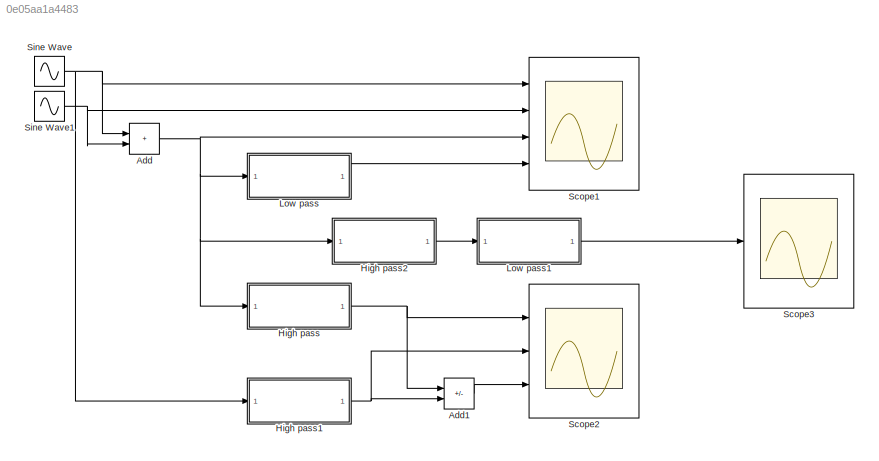
MODEL slx_0e05aa1a4483
KIND model
CONFIG AbsTol = auto
CONFIG EnableMultiTasking = off
CONFIG FixedStep = 1/100
CONFIG MaxStep = auto
CONFIG MinStep = auto
CONFIG RelTol = 1e-3
CONFIG SampleTimeConstraint = Unconstrained
CONFIG SolverName = FixedStepAuto
CONFIG StartTime = 0.0
CONFIG StopTime = 10.0
BLOCK [Sum] Add
  IconShape = rectangular
  Ports = [2, 1]
BLOCK [Sum] Add1
  IconShape = rectangular
  Inputs = +-
  Ports = [2, 1]
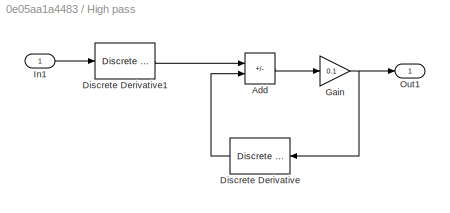
BLOCK [SubSystem] High pass
  Ports = [1, 1]
  RequestExecContextInheritance = off
BLOCK [Sum] High pass/Add
  IconShape = rectangular
  Inputs = +-
  Ports = [2, 1]
BLOCK [Reference] High pass/Discrete Derivative  REF=simulink/Discrete/Discrete Derivative
  Ports = [1, 1]
  SourceBlock = simulink/Discrete/Discrete Derivative
  SourceProductBaseCode = SL
  SourceType = Discrete Derivative
BLOCK [Reference] High pass/Discrete Derivative1  REF=simulink/Discrete/Discrete Derivative
  Ports = [1, 1]
  SourceBlock = simulink/Discrete/Discrete Derivative
  SourceProductBaseCode = SL
  SourceType = Discrete Derivative
BLOCK [Gain] High pass/Gain
  Gain = 0.1
BLOCK [Inport] High pass/In1
BLOCK [Outport] High pass/Out1
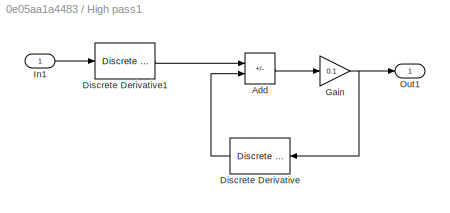
BLOCK [SubSystem] High pass1
  Ports = [1, 1]
  RequestExecContextInheritance = off
BLOCK [Sum] High pass1/Add
  IconShape = rectangular
  Inputs = +-
  Ports = [2, 1]
BLOCK [Reference] High pass1/Discrete Derivative  REF=simulink/Discrete/Discrete Derivative
  Ports = [1, 1]
  SourceBlock = simulink/Discrete/Discrete Derivative
  SourceProductBaseCode = SL
  SourceType = Discrete Derivative
BLOCK [Reference] High pass1/Discrete Derivative1  REF=simulink/Discrete/Discrete Derivative
  Ports = [1, 1]
  SourceBlock = simulink/Discrete/Discrete Derivative
  SourceProductBaseCode = SL
  SourceType = Discrete Derivative
BLOCK [Gain] High pass1/Gain
  Gain = 0.1
BLOCK [Inport] High pass1/In1
BLOCK [Outport] High pass1/Out1
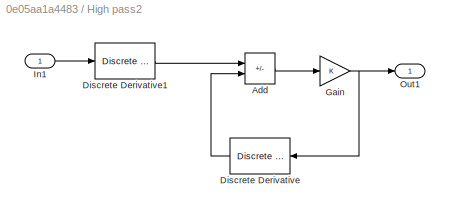
BLOCK [SubSystem] High pass2
  Ports = [1, 1]
  RequestExecContextInheritance = off
BLOCK [Sum] High pass2/Add
  IconShape = rectangular
  Inputs = +-
  Ports = [2, 1]
BLOCK [Reference] High pass2/Discrete Derivative  REF=simulink/Discrete/Discrete Derivative
  Ports = [1, 1]
  SourceBlock = simulink/Discrete/Discrete Derivative
  SourceProductBaseCode = SL
  SourceType = Discrete Derivative
BLOCK [Reference] High pass2/Discrete Derivative1  REF=simulink/Discrete/Discrete Derivative
  Ports = [1, 1]
  SourceBlock = simulink/Discrete/Discrete Derivative
  SourceProductBaseCode = SL
  SourceType = Discrete Derivative
BLOCK [Gain] High pass2/Gain
BLOCK [Inport] High pass2/In1
BLOCK [Outport] High pass2/Out1
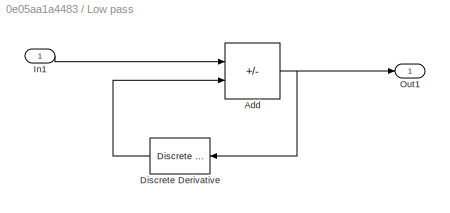
BLOCK [SubSystem] Low pass
  Ports = [1, 1]
  RequestExecContextInheritance = off
BLOCK [Sum] Low pass/Add
  IconShape = rectangular
  Inputs = +-
  Ports = [2, 1]
BLOCK [Reference] Low pass/Discrete Derivative  REF=simulink/Discrete/Discrete Derivative
  Ports = [1, 1]
  SourceBlock = simulink/Discrete/Discrete Derivative
  SourceProductBaseCode = SL
  SourceType = Discrete Derivative
BLOCK [Inport] Low pass/In1
BLOCK [Outport] Low pass/Out1
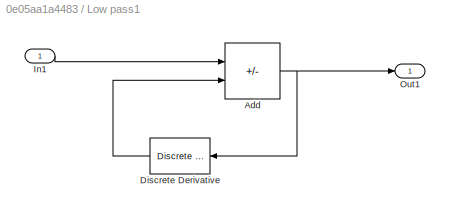
BLOCK [SubSystem] Low pass1
  Ports = [1, 1]
  RequestExecContextInheritance = off
BLOCK [Sum] Low pass1/Add
  IconShape = rectangular
  Inputs = +-
  Ports = [2, 1]
BLOCK [Reference] Low pass1/Discrete Derivative  REF=simulink/Discrete/Discrete Derivative
  Ports = [1, 1]
  SourceBlock = simulink/Discrete/Discrete Derivative
  SourceProductBaseCode = SL
  SourceType = Discrete Derivative
BLOCK [Inport] Low pass1/In1
BLOCK [Outport] Low pass1/Out1
BLOCK [Scope] Scope1
  Floating = off
  NumInputPorts = 4
  Ports = [4]
  ScopeSpecificationString = Simulink.scopes.TimeScopeBlockCfg('CurrentConfiguration', extmgr.ConfigurationSet(extmgr.Configuration('Core','General UI',true),extmgr.Configuration('Core','Source UI',true),extmgr.Configuration('Sources','WiredSimulink',true,'DataLoggingVariableName','ScopeData1'),extmgr.Configuration('Visuals','Time Domain',true,'SerializedDisplays',{struct('MinYLimReal','-62.49984','MaxYLimReal','62.49996','YL...<+3453ch>
BLOCK [Scope] Scope2
  Floating = off
  NumInputPorts = 3
  Ports = [3]
  ScopeSpecificationString = Simulink.scopes.TimeScopeBlockCfg('CurrentConfiguration', extmgr.ConfigurationSet(extmgr.Configuration('Core','General UI',true),extmgr.Configuration('Core','Source UI',true),extmgr.Configuration('Sources','WiredSimulink',true),extmgr.Configuration('Visuals','Time Domain',true,'SerializedDisplays',{struct('MinYLimReal','-12.13103','MaxYLimReal','12.12272','YLabelReal','','MinYLimMag','0.00000','Ma...<+2717ch>
BLOCK [Scope] Scope3
  Floating = off
  NumInputPorts = 1
  Ports = [1]
  ScopeSpecificationString = Simulink.scopes.TimeScopeBlockCfg('CurrentConfiguration', extmgr.ConfigurationSet(extmgr.Configuration('Core','General UI',true),extmgr.Configuration('Core','Source UI',true),extmgr.Configuration('Sources','WiredSimulink',true,'DataLoggingVariableName','ScopeData2'),extmgr.Configuration('Visuals','Time Domain',true,'SerializedDisplays',{struct('MinYLimReal','-4.71996','MaxYLimReal','4.27617','YLab...<+1486ch>
BLOCK [Sin] Sine Wave
  Amplitude = 50
  Ports = [0, 1]
  SampleTime = 0
BLOCK [Sin] Sine Wave1
  Amplitude = 5
  Frequency = 100
  Ports = [0, 1]
  SampleTime = 0
LINE Add1:1 -> Scope2:3
NET Add:1 -> High pass2:1, High pass:1, Low pass:1, Scope1:3
LINE High pass/Add:1 -> High pass/Gain:1
LINE High pass/Discrete Derivative1:1 -> High pass/Add:1
LINE High pass/Discrete Derivative:1 -> High pass/Add:2
NET High pass/Gain:1 -> High pass/Discrete Derivative:1, High pass/Out1:1
LINE High pass/In1:1 -> High pass/Discrete Derivative1:1
LINE High pass1/Add:1 -> High pass1/Gain:1
LINE High pass1/Discrete Derivative1:1 -> High pass1/Add:1
LINE High pass1/Discrete Derivative:1 -> High pass1/Add:2
NET High pass1/Gain:1 -> High pass1/Discrete Derivative:1, High pass1/Out1:1
LINE High pass1/In1:1 -> High pass1/Discrete Derivative1:1
NET High pass1:1 -> Add1:2, Scope2:2
LINE High pass2/Add:1 -> High pass2/Gain:1
LINE High pass2/Discrete Derivative1:1 -> High pass2/Add:1
LINE High pass2/Discrete Derivative:1 -> High pass2/Add:2
NET High pass2/Gain:1 -> High pass2/Discrete Derivative:1, High pass2/Out1:1
LINE High pass2/In1:1 -> High pass2/Discrete Derivative1:1
LINE High pass2:1 -> Low pass1:1
NET High pass:1 -> Add1:1, Scope2:1
NET Low pass/Add:1 -> Low pass/Discrete Derivative:1, Low pass/Out1:1
LINE Low pass/Discrete Derivative:1 -> Low pass/Add:2
LINE Low pass/In1:1 -> Low pass/Add:1
NET Low pass1/Add:1 -> Low pass1/Discrete Derivative:1, Low pass1/Out1:1
LINE Low pass1/Discrete Derivative:1 -> Low pass1/Add:2
LINE Low pass1/In1:1 -> Low pass1/Add:1
LINE Low pass1:1 -> Scope3:1
LINE Low pass:1 -> Scope1:4
NET Sine Wave1:1 -> Add:2, Scope1:2
NET Sine Wave:1 -> Add:1, High pass1:1, Scope1:1
note: NET lines group one-source signal fan-out (src -> all destinations, sorted); 1:1 wires keep LINE
